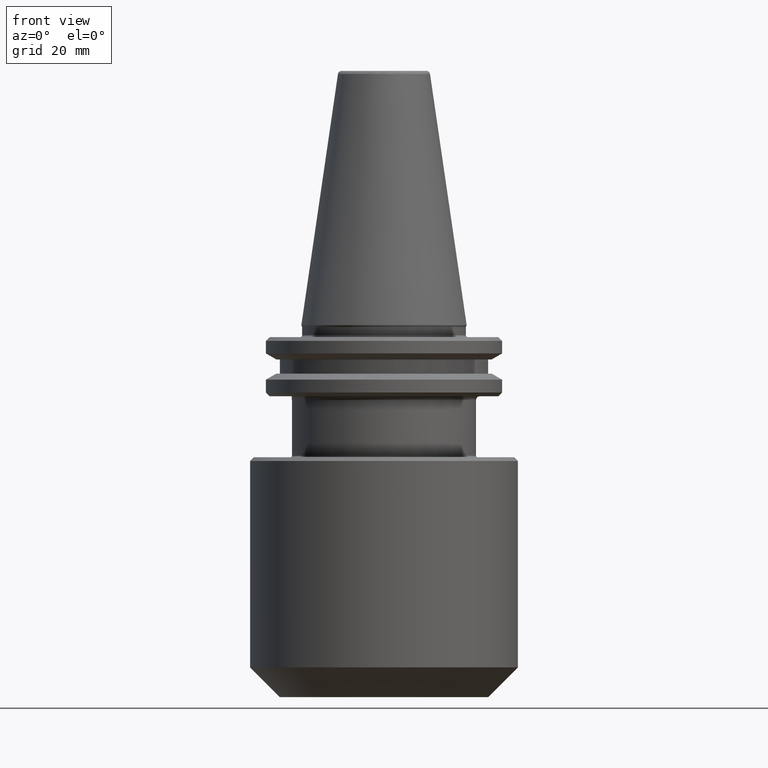
[diagram: clean part render]
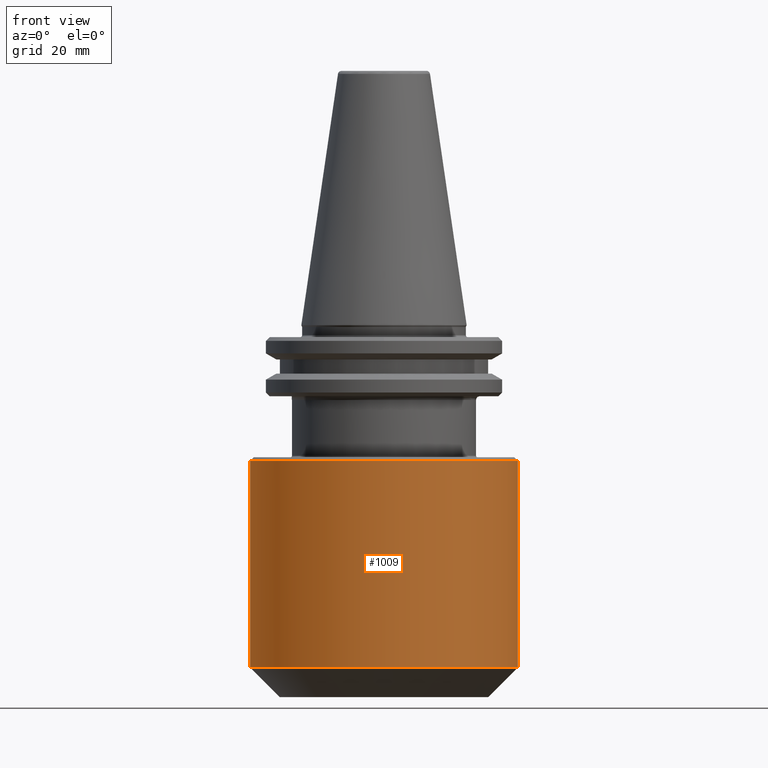
[diagram: same view with one face highlighted and labeled with its STEP entity id]
A machine part, front view. The second image highlights one B-rep face of the part: STEP entity #1009.
In plain terms, the highlighted cylindrical surface (partial cylindrical patch) has radius 36 mm, axis along (0, 0, 1).
Its self-contained STEP definition (entity closure, byte-faithful):
#1 = EDGE_CURVE ( 'NONE', #1470, #1236, #1473, .T. ) ;
#64 = CARTESIAN_POINT ( 'NONE',  ( 36.00000000000000700, 0.0000000000000000000, -91.99999999999997200 ) ) ;
#360 = CIRCLE ( 'NONE', #1238, 35.99999999999999300 ) ;
#433 = EDGE_CURVE ( 'NONE', #1236, #1221, #360, .T. ) ;
#501 = CARTESIAN_POINT ( 'NONE',  ( 35.99999999999998600, 4.408728476930469300E-015, -36.50000000000000700 ) ) ;
#514 = ORIENTED_EDGE ( 'NONE', *, *, #433, .T. ) ;
#523 = CARTESIAN_POINT ( 'NONE',  ( -35.99999999999998600, 0.0000000000000000000, -36.50000000000000700 ) ) ;
#547 = CARTESIAN_POINT ( 'NONE',  ( -36.00000000000000700, 4.408728476930471600E-015, -91.99999999999997200 ) ) ;
#579 = CIRCLE ( 'NONE', #1830, 35.99999999999999300 ) ;
#837 = FACE_OUTER_BOUND ( 'NONE', #1177, .T. ) ;
#864 = DIRECTION ( 'NONE',  ( 0.0000000000000000000, 0.0000000000000000000, 1.000000000000000000 ) ) ;
#874 = DIRECTION ( 'NONE',  ( 1.000000000000000000, 0.0000000000000000000, 0.0000000000000000000 ) ) ;
#877 = CARTESIAN_POINT ( 'NONE',  ( 0.0000000000000000000, 0.0000000000000000000, 82.95681253582424100 ) ) ;
#879 = DIRECTION ( 'NONE',  ( 0.0000000000000000000, 0.0000000000000000000, 1.000000000000000000 ) ) ;
#884 = CARTESIAN_POINT ( 'NONE',  ( -35.99999999999999300, 4.408728476930470100E-015, 82.95681253582424100 ) ) ;
#885 = DIRECTION ( 'NONE',  ( 0.0000000000000000000, 0.0000000000000000000, 1.000000000000000000 ) ) ;
#1001 = DIRECTION ( 'NONE',  ( 1.000000000000000000, 0.0000000000000000000, 0.0000000000000000000 ) ) ;
#1006 = EDGE_CURVE ( 'NONE', #1120, #1221, #1923, .T. ) ;
#1009 = ADVANCED_FACE ( 'NONE', ( #837 ), #1896, .T. ) ;
#1056 = VECTOR ( 'NONE', #1614, 1000.000000000000000 ) ;
#1120 = VERTEX_POINT ( 'NONE', #547 ) ;
#1177 = EDGE_LOOP ( 'NONE', ( #1508, #1628, #1410, #514 ) ) ;
#1221 = VERTEX_POINT ( 'NONE', #523 ) ;
#1236 = VERTEX_POINT ( 'NONE', #501 ) ;
#1238 = AXIS2_PLACEMENT_3D ( 'NONE', #1808, #1479, #1485 ) ;
#1365 = CARTESIAN_POINT ( 'NONE',  ( 0.0000000000000000000, 0.0000000000000000000, -91.99999999999997200 ) ) ;
#1410 = ORIENTED_EDGE ( 'NONE', *, *, #1, .T. ) ;
#1470 = VERTEX_POINT ( 'NONE', #64 ) ;
#1473 = LINE ( 'NONE', #1729, #1056 ) ;
#1479 = DIRECTION ( 'NONE',  ( -0.0000000000000000000, -0.0000000000000000000, -1.000000000000000000 ) ) ;
#1485 = DIRECTION ( 'NONE',  ( 1.000000000000000000, 0.0000000000000000000, 0.0000000000000000000 ) ) ;
#1508 = ORIENTED_EDGE ( 'NONE', *, *, #1006, .F. ) ;
#1538 = VECTOR ( 'NONE', #879, 1000.000000000000000 ) ;
#1614 = DIRECTION ( 'NONE',  ( 0.0000000000000000000, 0.0000000000000000000, 1.000000000000000000 ) ) ;
#1628 = ORIENTED_EDGE ( 'NONE', *, *, #1708, .T. ) ;
#1708 = EDGE_CURVE ( 'NONE', #1120, #1470, #579, .T. ) ;
#1728 = AXIS2_PLACEMENT_3D ( 'NONE', #877, #885, #874 ) ;
#1729 = CARTESIAN_POINT ( 'NONE',  ( 35.99999999999999300, 0.0000000000000000000, 82.95681253582424100 ) ) ;
#1808 = CARTESIAN_POINT ( 'NONE',  ( 0.0000000000000000000, 0.0000000000000000000, -36.50000000000000700 ) ) ;
#1830 = AXIS2_PLACEMENT_3D ( 'NONE', #1365, #864, #1001 ) ;
#1896 = CYLINDRICAL_SURFACE ( 'NONE', #1728, 35.99999999999999300 ) ;
#1923 = LINE ( 'NONE', #884, #1538 ) ;